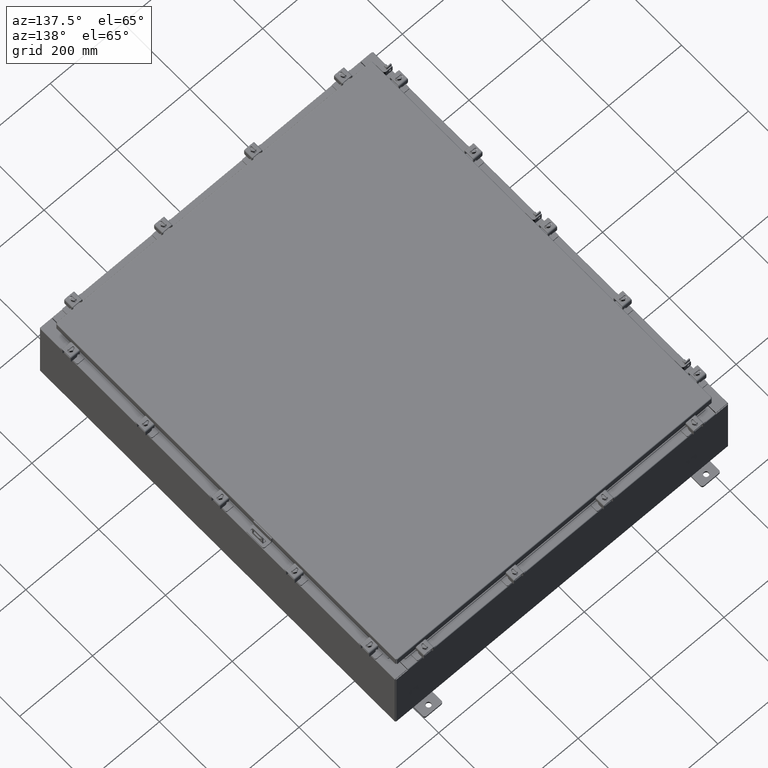
[diagram: clean part render]
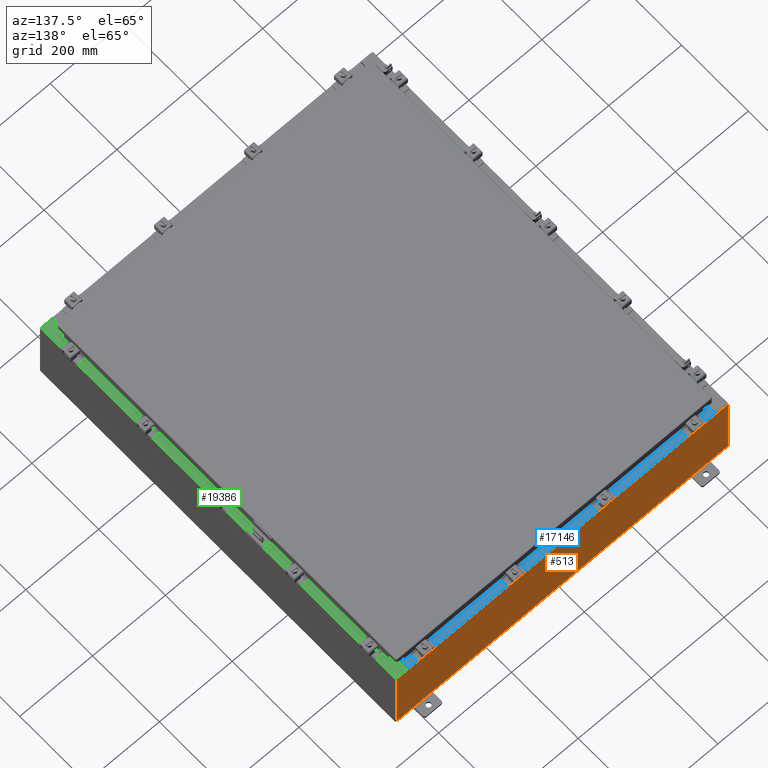
[diagram: same view with three faces highlighted in distinct colors, each labeled with its STEP entity id]
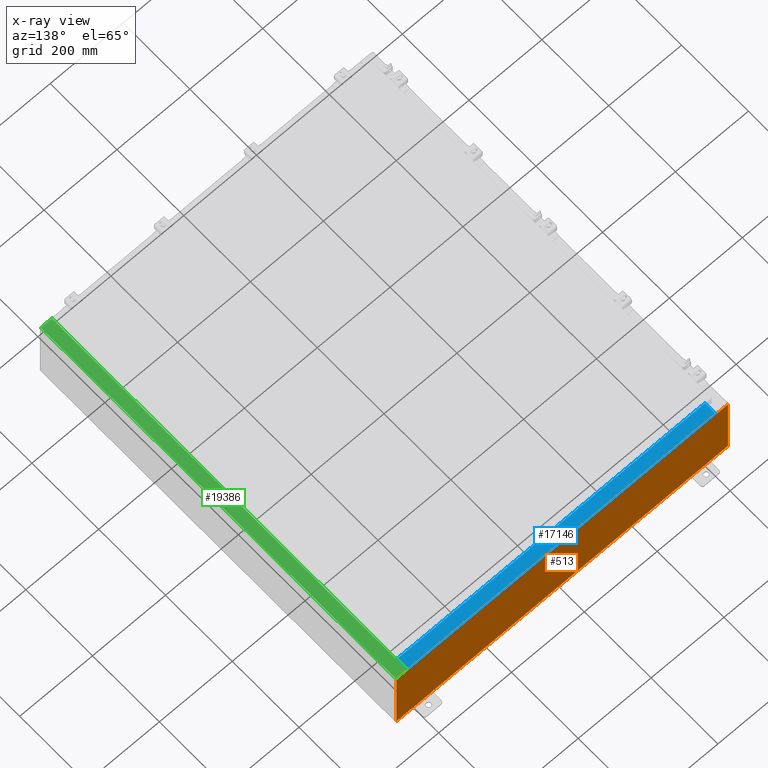
[diagram: x-ray of the same camera — body ghosted, the three highlighted faces saturated]
A machine part, auxiliary view with three faces highlighted in distinct colors.
The next image is the same camera in x-ray (body ghosted, the three faces saturated) — at least one of them is partly hidden behind the body in this view.
Their STEP definitions:

[orange] entity #513 — the highlighted planar face has unit normal (0, -1, 0).
#57 = CARTESIAN_POINT ( 'NONE',  ( 17.92530000000000400, 0.0000000000000000000, -3.925299999999999100 ) ) ;
#249 = DIRECTION ( 'NONE',  ( -0.0000000000000000000, 1.000000000000000000, -0.0000000000000000000 ) ) ;
#468 = CARTESIAN_POINT ( 'NONE',  ( -17.92529999999999600, 0.0000000000000000000, 3.925300000000000500 ) ) ;
#513 = ADVANCED_FACE ( 'NONE', ( #872 ), #7892, .F. ) ;
#721 = ORIENTED_EDGE ( 'NONE', *, *, #7385, .T. ) ;
#872 = FACE_OUTER_BOUND ( 'NONE', #26702, .T. ) ;
#1175 = ORIENTED_EDGE ( 'NONE', *, *, #8041, .T. ) ;
#1194 = CARTESIAN_POINT ( 'NONE',  ( -17.92529999999999600, 0.0000000000000000000, -3.925299999999999100 ) ) ;
#1253 = CARTESIAN_POINT ( 'NONE',  ( 16.63720000000000700, 0.0000000000000000000, 3.874950000000000100 ) ) ;
#1346 = LINE ( 'NONE', #3419, #6255 ) ;
#1820 = LINE ( 'NONE', #1194, #16595 ) ;
#1972 = DIRECTION ( 'NONE',  ( 0.0000000000000000000, 0.0000000000000000000, -1.000000000000000000 ) ) ;
#2774 = CARTESIAN_POINT ( 'NONE',  ( -16.63719999999999600, 3.756290991288361700E-016, 3.912300000000000100 ) ) ;
#2886 = EDGE_CURVE ( 'NONE', #23083, #26598, #16875, .T. ) ;
#2887 = VERTEX_POINT ( 'NONE', #9595 ) ;
#3419 = CARTESIAN_POINT ( 'NONE',  ( -16.63719999999999600, 3.756290991288361700E-016, 3.912300000000000100 ) ) ;
#3991 = VERTEX_POINT ( 'NONE', #9312 ) ;
#4655 = AXIS2_PLACEMENT_3D ( 'NONE', #12800, #249, #14933 ) ;
#4781 = VECTOR ( 'NONE', #9512, 39.37007874015748100 ) ;
#4838 = ORIENTED_EDGE ( 'NONE', *, *, #17167, .F. ) ;
#5137 = LINE ( 'NONE', #23334, #26874 ) ;
#5759 = EDGE_CURVE ( 'NONE', #2887, #24980, #5980, .T. ) ;
#5980 = LINE ( 'NONE', #22953, #17142 ) ;
#6255 = VECTOR ( 'NONE', #9745, 39.37007874015748100 ) ;
#7196 = CARTESIAN_POINT ( 'NONE',  ( -17.92529999999999600, 0.0000000000000000000, 3.925300000000000500 ) ) ;
#7385 = EDGE_CURVE ( 'NONE', #11312, #3991, #1820, .T. ) ;
#7414 = CARTESIAN_POINT ( 'NONE',  ( -17.92529999999999600, 0.0000000000000000000, 3.925300000000000500 ) ) ;
#7530 = DIRECTION ( 'NONE',  ( 0.0000000000000000000, -1.000000000000000000, 0.0000000000000000000 ) ) ;
#7630 = DIRECTION ( 'NONE',  ( 0.0000000000000000000, -0.0000000000000000000, -1.000000000000000000 ) ) ;
#7814 = CARTESIAN_POINT ( 'NONE',  ( 0.0000000000000000000, 0.0000000000000000000, 0.0000000000000000000 ) ) ;
#7892 = PLANE ( 'NONE',  #21831 ) ;
#8041 = EDGE_CURVE ( 'NONE', #14058, #11312, #10949, .T. ) ;
#8696 = DIRECTION ( 'NONE',  ( 0.0000000000000000000, 0.0000000000000000000, -1.000000000000000000 ) ) ;
#9312 = CARTESIAN_POINT ( 'NONE',  ( -17.92529999999999600, 0.0000000000000000000, -3.925299999999999100 ) ) ;
#9512 = DIRECTION ( 'NONE',  ( 1.000000000000000000, 0.0000000000000000000, 0.0000000000000000000 ) ) ;
#9595 = CARTESIAN_POINT ( 'NONE',  ( 16.67455000000001100, 0.0000000000000000000, 3.925300000000000500 ) ) ;
#9745 = DIRECTION ( 'NONE',  ( 1.000000000000000000, 0.0000000000000000000, 0.0000000000000000000 ) ) ;
#9878 = ORIENTED_EDGE ( 'NONE', *, *, #10477, .T. ) ;
#9892 = ORIENTED_EDGE ( 'NONE', *, *, #21265, .F. ) ;
#9970 = ORIENTED_EDGE ( 'NONE', *, *, #24027, .T. ) ;
#10043 = DIRECTION ( 'NONE',  ( 0.0000000000000000000, 0.0000000000000000000, -1.000000000000000000 ) ) ;
#10348 = ORIENTED_EDGE ( 'NONE', *, *, #2886, .T. ) ;
#10477 = EDGE_CURVE ( 'NONE', #26404, #22244, #1346, .T. ) ;
#10949 = LINE ( 'NONE', #22672, #22190 ) ;
#11312 = VERTEX_POINT ( 'NONE', #57 ) ;
#12047 = CARTESIAN_POINT ( 'NONE',  ( -16.67454999999999600, -0.0000000000000000000, 0.0000000000000000000 ) ) ;
#12261 = EDGE_CURVE ( 'NONE', #3991, #23083, #13788, .T. ) ;
#12378 = ORIENTED_EDGE ( 'NONE', *, *, #12261, .T. ) ;
#12800 = CARTESIAN_POINT ( 'NONE',  ( 16.65587500000000500, 0.0000000000000000000, 3.874950000000000100 ) ) ;
#13320 = CIRCLE ( 'NONE', #21772, 0.01867499999999949400 ) ;
#13336 = VECTOR ( 'NONE', #24659, 39.37007874015748100 ) ;
#13767 = CARTESIAN_POINT ( 'NONE',  ( -16.67454999999999600, 0.0000000000000000000, 3.925300000000000500 ) ) ;
#13788 = LINE ( 'NONE', #7196, #25016 ) ;
#14058 = VERTEX_POINT ( 'NONE', #20248 ) ;
#14412 = VECTOR ( 'NONE', #19577, 39.37007874015748100 ) ;
#14550 = DIRECTION ( 'NONE',  ( -0.0000000000000000000, 1.000000000000000000, -0.0000000000000000000 ) ) ;
#14658 = VERTEX_POINT ( 'NONE', #15580 ) ;
#14716 = EDGE_CURVE ( 'NONE', #25577, #26598, #18977, .T. ) ;
#14910 = CIRCLE ( 'NONE', #4655, 0.01867499999999949400 ) ;
#14933 = DIRECTION ( 'NONE',  ( 0.0000000000000000000, 0.0000000000000000000, -1.000000000000000000 ) ) ;
#15580 = CARTESIAN_POINT ( 'NONE',  ( -16.63719999999999600, -0.0000000000000000000, 3.874950000000000100 ) ) ;
#15873 = DIRECTION ( 'NONE',  ( -1.000000000000000000, -0.0000000000000000000, -0.0000000000000000000 ) ) ;
#16079 = ORIENTED_EDGE ( 'NONE', *, *, #14716, .F. ) ;
#16506 = CARTESIAN_POINT ( 'NONE',  ( 16.63720000000000700, 0.0000000000000000000, 3.912300000000000100 ) ) ;
#16595 = VECTOR ( 'NONE', #15873, 39.37007874015748100 ) ;
#16875 = LINE ( 'NONE', #22127, #21820 ) ;
#17142 = VECTOR ( 'NONE', #18796, 39.37007874015748100 ) ;
#17167 = EDGE_CURVE ( 'NONE', #14658, #25577, #13320, .T. ) ;
#17363 = CARTESIAN_POINT ( 'NONE',  ( 16.63720000000000700, 0.0000000000000000000, 0.0000000000000000000 ) ) ;
#17560 = ORIENTED_EDGE ( 'NONE', *, *, #5759, .F. ) ;
#17976 = DIRECTION ( 'NONE',  ( 1.000000000000000000, 0.0000000000000000000, 0.0000000000000000000 ) ) ;
#18435 = ORIENTED_EDGE ( 'NONE', *, *, #23699, .F. ) ;
#18796 = DIRECTION ( 'NONE',  ( -8.681145560800009800E-014, 0.0000000000000000000, -1.000000000000000000 ) ) ;
#18977 = LINE ( 'NONE', #12047, #13336 ) ;
#19577 = DIRECTION ( 'NONE',  ( 0.0000000000000000000, 0.0000000000000000000, 1.000000000000000000 ) ) ;
#19802 = DIRECTION ( 'NONE',  ( -0.0000000000000000000, -0.0000000000000000000, 1.000000000000000000 ) ) ;
#20015 = LINE ( 'NONE', #17363, #14412 ) ;
#20248 = CARTESIAN_POINT ( 'NONE',  ( 17.92530000000000400, 0.0000000000000000000, 3.925300000000000500 ) ) ;
#21265 = EDGE_CURVE ( 'NONE', #22721, #22244, #20015, .T. ) ;
#21413 = ORIENTED_EDGE ( 'NONE', *, *, #25470, .F. ) ;
#21586 = LINE ( 'NONE', #7414, #4781 ) ;
#21772 = AXIS2_PLACEMENT_3D ( 'NONE', #27184, #14550, #1972 ) ;
#21820 = VECTOR ( 'NONE', #17976, 39.37007874015748100 ) ;
#21831 = AXIS2_PLACEMENT_3D ( 'NONE', #7814, #7530, #7630 ) ;
#22127 = CARTESIAN_POINT ( 'NONE',  ( -17.92529999999999600, 0.0000000000000000000, 3.925300000000000500 ) ) ;
#22190 = VECTOR ( 'NONE', #10043, 39.37007874015748100 ) ;
#22244 = VERTEX_POINT ( 'NONE', #16506 ) ;
#22672 = CARTESIAN_POINT ( 'NONE',  ( 17.92530000000000400, 0.0000000000000000000, 3.925300000000000500 ) ) ;
#22721 = VERTEX_POINT ( 'NONE', #1253 ) ;
#22953 = CARTESIAN_POINT ( 'NONE',  ( 16.67454999999967000, -0.0000000000000000000, -1.447541957108349400E-012 ) ) ;
#23083 = VERTEX_POINT ( 'NONE', #468 ) ;
#23334 = CARTESIAN_POINT ( 'NONE',  ( -16.63719999999999600, -0.0000000000000000000, 0.0000000000000000000 ) ) ;
#23619 = CARTESIAN_POINT ( 'NONE',  ( 16.67455000000000700, 0.0000000000000000000, 3.874950000000000100 ) ) ;
#23699 = EDGE_CURVE ( 'NONE', #26404, #14658, #5137, .T. ) ;
#24027 = EDGE_CURVE ( 'NONE', #2887, #14058, #21586, .T. ) ;
#24659 = DIRECTION ( 'NONE',  ( 0.0000000000000000000, 0.0000000000000000000, 1.000000000000000000 ) ) ;
#24980 = VERTEX_POINT ( 'NONE', #23619 ) ;
#25016 = VECTOR ( 'NONE', #19802, 39.37007874015748100 ) ;
#25470 = EDGE_CURVE ( 'NONE', #24980, #22721, #14910, .T. ) ;
#25577 = VERTEX_POINT ( 'NONE', #25604 ) ;
#25604 = CARTESIAN_POINT ( 'NONE',  ( -16.67454999999999600, 0.0000000000000000000, 3.874950000000000100 ) ) ;
#26404 = VERTEX_POINT ( 'NONE', #2774 ) ;
#26598 = VERTEX_POINT ( 'NONE', #13767 ) ;
#26702 = EDGE_LOOP ( 'NONE', ( #16079, #4838, #18435, #9878, #9892, #21413, #17560, #9970, #1175, #721, #12378, #10348 ) ) ;
#26874 = VECTOR ( 'NONE', #8696, 39.37007874015748100 ) ;
#27184 = CARTESIAN_POINT ( 'NONE',  ( -16.65587499999999800, 0.0000000000000000000, 3.874950000000000100 ) ) ;

[blue] entity #17146 — the highlighted planar face has unit normal (0, 0, 1).
#1323 = LINE ( 'NONE', #27139, #23033 ) ;
#1895 = DIRECTION ( 'NONE',  ( 0.0000000000000000000, -1.000000000000000000, 3.566381192773190000E-015 ) ) ;
#2396 = LINE ( 'NONE', #10408, #24120 ) ;
#2679 = VECTOR ( 'NONE', #13188, 39.37007874015748100 ) ;
#3778 = VERTEX_POINT ( 'NONE', #12792 ) ;
#4171 = DIRECTION ( 'NONE',  ( -0.0000000000000000000, 1.000000000000000000, -3.566381192773190000E-015 ) ) ;
#5067 = CARTESIAN_POINT ( 'NONE',  ( 16.63720000000000400, -1.287299999999999900, 4.000000000000004400 ) ) ;
#6319 = CARTESIAN_POINT ( 'NONE',  ( -16.63719999999999600, -0.08769999999999972300, 4.000000000000000900 ) ) ;
#6752 = EDGE_CURVE ( 'NONE', #17540, #14787, #18437, .T. ) ;
#7035 = EDGE_CURVE ( 'NONE', #3778, #9414, #1323, .T. ) ;
#7223 = VECTOR ( 'NONE', #13662, 39.37007874015748100 ) ;
#9069 = FACE_OUTER_BOUND ( 'NONE', #24434, .T. ) ;
#9414 = VERTEX_POINT ( 'NONE', #6319 ) ;
#10115 = CARTESIAN_POINT ( 'NONE',  ( -16.63719999999999600, -1.287299999999999200, 4.000000000000004400 ) ) ;
#10408 = CARTESIAN_POINT ( 'NONE',  ( -16.63719999999999600, -0.07469999999999973900, 4.000000000000000900 ) ) ;
#12776 = ORIENTED_EDGE ( 'NONE', *, *, #7035, .T. ) ;
#12792 = CARTESIAN_POINT ( 'NONE',  ( 16.63720000000000700, -0.08769999999999937600, 4.000000000000000900 ) ) ;
#13188 = DIRECTION ( 'NONE',  ( -0.0000000000000000000, -1.000000000000000000, 3.566381192773190000E-015 ) ) ;
#13662 = DIRECTION ( 'NONE',  ( -1.000000000000000000, 0.0000000000000000000, 0.0000000000000000000 ) ) ;
#13972 = ORIENTED_EDGE ( 'NONE', *, *, #26118, .F. ) ;
#14452 = DIRECTION ( 'NONE',  ( 0.0000000000000000000, 3.566381192773190000E-015, 1.000000000000000000 ) ) ;
#14787 = VERTEX_POINT ( 'NONE', #10115 ) ;
#15797 = CARTESIAN_POINT ( 'NONE',  ( 16.63720000000000700, -1.287299999999999900, 4.000000000000004400 ) ) ;
#17146 = ADVANCED_FACE ( 'NONE', ( #9069 ), #24961, .T. ) ;
#17540 = VERTEX_POINT ( 'NONE', #5067 ) ;
#17674 = ORIENTED_EDGE ( 'NONE', *, *, #26948, .F. ) ;
#18437 = LINE ( 'NONE', #15797, #7223 ) ;
#19027 = CARTESIAN_POINT ( 'NONE',  ( 16.63720000000000400, -1.300299999999999800, 4.000000000000004400 ) ) ;
#20801 = LINE ( 'NONE', #19027, #2679 ) ;
#20877 = DIRECTION ( 'NONE',  ( -1.000000000000000000, 3.284023746380717400E-017, -1.171208052571274300E-031 ) ) ;
#23033 = VECTOR ( 'NONE', #20877, 39.37007874015748100 ) ;
#23188 = AXIS2_PLACEMENT_3D ( 'NONE', #27092, #14452, #1895 ) ;
#23266 = ORIENTED_EDGE ( 'NONE', *, *, #6752, .F. ) ;
#24120 = VECTOR ( 'NONE', #4171, 39.37007874015748100 ) ;
#24434 = EDGE_LOOP ( 'NONE', ( #13972, #23266, #17674, #12776 ) ) ;
#24961 = PLANE ( 'NONE',  #23188 ) ;
#26118 = EDGE_CURVE ( 'NONE', #14787, #9414, #2396, .T. ) ;
#26948 = EDGE_CURVE ( 'NONE', #3778, #17540, #20801, .T. ) ;
#27092 = CARTESIAN_POINT ( 'NONE',  ( 0.0000000000000000000, 1.425992975200418500E-014, 4.000000000000000900 ) ) ;
#27139 = CARTESIAN_POINT ( 'NONE',  ( -2.880088825576348200E-018, -0.08769999999999972300, 4.000000000000000900 ) ) ;

[green] entity #19386 — the highlighted planar face has unit normal (-0, -0, -1).
#4 = EDGE_CURVE ( 'NONE', #19740, #6968, #21945, .T. ) ;
#421 = DIRECTION ( 'NONE',  ( 1.000000000000000000, 0.0000000000000000000, -6.241167087353087800E-015 ) ) ;
#875 = EDGE_CURVE ( 'NONE', #2236, #10818, #4773, .T. ) ;
#1174 = CARTESIAN_POINT ( 'NONE',  ( 4.972393517341169600E-014, -20.92529999999999600, 7.925300000000113700 ) ) ;
#1366 = ORIENTED_EDGE ( 'NONE', *, *, #4, .F. ) ;
#1755 = CARTESIAN_POINT ( 'NONE',  ( 16.71270000000003400, 19.59374999999998200, 7.925300000000009800 ) ) ;
#1760 = CARTESIAN_POINT ( 'NONE',  ( 16.75005000000003400, 19.61242499999998000, 7.925300000000009800 ) ) ;
#1776 = CARTESIAN_POINT ( 'NONE',  ( 16.69970000000003200, 20.92529999999997900, 7.925300000000008900 ) ) ;
#2125 = CIRCLE ( 'NONE', #22130, 0.01867499999999949400 ) ;
#2236 = VERTEX_POINT ( 'NONE', #22403 ) ;
#3061 = ORIENTED_EDGE ( 'NONE', *, *, #25310, .F. ) ;
#3206 = VECTOR ( 'NONE', #21599, 39.37007874015748100 ) ;
#3245 = VERTEX_POINT ( 'NONE', #17104 ) ;
#3725 = ORIENTED_EDGE ( 'NONE', *, *, #25478, .F. ) ;
#3739 = VECTOR ( 'NONE', #21221, 39.37007874015748100 ) ;
#3855 = DIRECTION ( 'NONE',  ( 1.000000000000000000, 0.0000000000000000000, 0.0000000000000000000 ) ) ;
#3905 = LINE ( 'NONE', #6976, #25598 ) ;
#3930 = CARTESIAN_POINT ( 'NONE',  ( 16.75005000000003400, -19.61242499999999800, 7.925300000000009800 ) ) ;
#4560 = ORIENTED_EDGE ( 'NONE', *, *, #14316, .F. ) ;
#4754 = CARTESIAN_POINT ( 'NONE',  ( 16.69970000000003200, 2.069333763834919300E-016, 7.925300000000008900 ) ) ;
#4773 = LINE ( 'NONE', #1174, #5451 ) ;
#5451 = VECTOR ( 'NONE', #421, 39.37007874015748100 ) ;
#5896 = CARTESIAN_POINT ( 'NONE',  ( 16.71270000000003400, 19.59374999999998200, 7.925300000000009800 ) ) ;
#6056 = DIRECTION ( 'NONE',  ( 1.000000000000000000, 0.0000000000000000000, 0.0000000000000000000 ) ) ;
#6613 = VERTEX_POINT ( 'NONE', #6974 ) ;
#6814 = LINE ( 'NONE', #7225, #16691 ) ;
#6968 = VERTEX_POINT ( 'NONE', #1755 ) ;
#6974 = CARTESIAN_POINT ( 'NONE',  ( 16.75005000000003400, -19.59375000000000000, 7.925300000000007100 ) ) ;
#6976 = CARTESIAN_POINT ( 'NONE',  ( 16.69970000000003200, 2.069333763834919300E-016, 7.925300000000008900 ) ) ;
#6994 = FACE_OUTER_BOUND ( 'NONE', #23628, .T. ) ;
#7072 = CARTESIAN_POINT ( 'NONE',  ( 17.91230000000002700, 20.92529999999997500, 7.925300000000000000 ) ) ;
#7225 = CARTESIAN_POINT ( 'NONE',  ( 17.91230000000002700, -20.92529999999999600, 7.925300000000000900 ) ) ;
#7321 = DIRECTION ( 'NONE',  ( -0.0000000000000000000, -1.000000000000000000, 2.611047864225856100E-017 ) ) ;
#7487 = CARTESIAN_POINT ( 'NONE',  ( 16.69970000000003200, 19.63109999999997500, 7.925300000000008900 ) ) ;
#8170 = DIRECTION ( 'NONE',  ( -6.241167087353086200E-015, -2.611047864225855500E-017, -1.000000000000000000 ) ) ;
#8785 = LINE ( 'NONE', #11080, #3206 ) ;
#9090 = DIRECTION ( 'NONE',  ( 0.0000000000000000000, -1.000000000000000000, 2.611047864225856100E-017 ) ) ;
#9348 = CARTESIAN_POINT ( 'NONE',  ( 17.91230000000002700, -20.92529999999999600, 7.925300000000000900 ) ) ;
#9838 = VERTEX_POINT ( 'NONE', #7487 ) ;
#10264 = ORIENTED_EDGE ( 'NONE', *, *, #17769, .F. ) ;
#10451 = CARTESIAN_POINT ( 'NONE',  ( 16.75005000000003400, -19.59375000000000000, 7.925300000000009800 ) ) ;
#10640 = LINE ( 'NONE', #25421, #3739 ) ;
#10818 = VERTEX_POINT ( 'NONE', #9348 ) ;
#11080 = CARTESIAN_POINT ( 'NONE',  ( 4.972393517341169600E-014, 20.92529999999998600, 7.925300000000111900 ) ) ;
#11609 = EDGE_CURVE ( 'NONE', #19620, #2236, #27031, .T. ) ;
#12017 = VECTOR ( 'NONE', #20613, 39.37007874015748100 ) ;
#12134 = CARTESIAN_POINT ( 'NONE',  ( 16.75005000000003400, 19.59374999999998200, 7.925300000000007100 ) ) ;
#12202 = CARTESIAN_POINT ( 'NONE',  ( 16.71270000000003400, -19.59375000000000000, 7.925300000000009800 ) ) ;
#12303 = CARTESIAN_POINT ( 'NONE',  ( 4.972393517341169600E-014, 2.069333763834946700E-016, 7.925300000000111900 ) ) ;
#12907 = CARTESIAN_POINT ( 'NONE',  ( 16.69970000000003200, -19.63110000000000000, 7.925300000000008900 ) ) ;
#13170 = DIRECTION ( 'NONE',  ( -0.0000000000000000000, 1.000000000000000000, -0.0000000000000000000 ) ) ;
#13174 = DIRECTION ( 'NONE',  ( 0.0000000000000000000, -1.000000000000000000, 2.611047864225856100E-017 ) ) ;
#13227 = VERTEX_POINT ( 'NONE', #22115 ) ;
#14316 = EDGE_CURVE ( 'NONE', #6613, #19740, #21959, .T. ) ;
#14820 = VERTEX_POINT ( 'NONE', #1776 ) ;
#15391 = CARTESIAN_POINT ( 'NONE',  ( 16.71270000000003400, -19.59375000000000000, 7.925300000000009800 ) ) ;
#15523 = ORIENTED_EDGE ( 'NONE', *, *, #11609, .T. ) ;
#15818 = VECTOR ( 'NONE', #13174, 39.37007874015748100 ) ;
#15858 = ORIENTED_EDGE ( 'NONE', *, *, #17038, .F. ) ;
#16342 = VECTOR ( 'NONE', #13170, 39.37007874015748100 ) ;
#16443 = DIRECTION ( 'NONE',  ( 6.241167087353086200E-015, 2.611047864225855500E-017, 1.000000000000000000 ) ) ;
#16672 = CIRCLE ( 'NONE', #24882, 0.01867499999999949400 ) ;
#16691 = VECTOR ( 'NONE', #7321, 39.37007874015748100 ) ;
#17038 = EDGE_CURVE ( 'NONE', #19620, #13227, #22280, .T. ) ;
#17104 = CARTESIAN_POINT ( 'NONE',  ( 16.75005000000003400, 19.63109999999998200, 7.925300000000007100 ) ) ;
#17759 = VERTEX_POINT ( 'NONE', #12134 ) ;
#17769 = EDGE_CURVE ( 'NONE', #6968, #17759, #23218, .T. ) ;
#18651 = DIRECTION ( 'NONE',  ( 6.241167087353086200E-015, 2.611047864225855500E-017, 1.000000000000000000 ) ) ;
#18669 = PLANE ( 'NONE',  #20407 ) ;
#19059 = VERTEX_POINT ( 'NONE', #7072 ) ;
#19386 = ADVANCED_FACE ( 'NONE', ( #6994 ), #18669, .F. ) ;
#19620 = VERTEX_POINT ( 'NONE', #12907 ) ;
#19740 = VERTEX_POINT ( 'NONE', #15391 ) ;
#20407 = AXIS2_PLACEMENT_3D ( 'NONE', #12303, #8170, #22916 ) ;
#20525 = ORIENTED_EDGE ( 'NONE', *, *, #875, .T. ) ;
#20613 = DIRECTION ( 'NONE',  ( 1.000000000000000000, 0.0000000000000000000, 0.0000000000000000000 ) ) ;
#20971 = DIRECTION ( 'NONE',  ( -1.000000000000000000, 0.0000000000000000000, 0.0000000000000000000 ) ) ;
#20997 = ORIENTED_EDGE ( 'NONE', *, *, #23491, .F. ) ;
#21221 = DIRECTION ( 'NONE',  ( -1.000000000000000000, 4.340572780399910900E-014, -2.170286390199955400E-014 ) ) ;
#21272 = EDGE_CURVE ( 'NONE', #14820, #9838, #3905, .T. ) ;
#21301 = VECTOR ( 'NONE', #20971, 39.37007874015748100 ) ;
#21538 = ORIENTED_EDGE ( 'NONE', *, *, #21272, .T. ) ;
#21599 = DIRECTION ( 'NONE',  ( -1.000000000000000000, 0.0000000000000000000, 6.241167087353087800E-015 ) ) ;
#21795 = EDGE_CURVE ( 'NONE', #19059, #14820, #8785, .T. ) ;
#21942 = EDGE_CURVE ( 'NONE', #19059, #10818, #6814, .T. ) ;
#21945 = LINE ( 'NONE', #12202, #16342 ) ;
#21959 = LINE ( 'NONE', #10451, #21301 ) ;
#22115 = CARTESIAN_POINT ( 'NONE',  ( 16.75005000000003400, -19.63109999999999600, 7.925300000000008900 ) ) ;
#22130 = AXIS2_PLACEMENT_3D ( 'NONE', #3930, #18651, #6056 ) ;
#22280 = LINE ( 'NONE', #26713, #26545 ) ;
#22403 = CARTESIAN_POINT ( 'NONE',  ( 16.69970000000003200, -20.92529999999999600, 7.925300000000009800 ) ) ;
#22916 = DIRECTION ( 'NONE',  ( -1.000000000000000000, 0.0000000000000000000, 6.241167087353086200E-015 ) ) ;
#23218 = LINE ( 'NONE', #5896, #12017 ) ;
#23491 = EDGE_CURVE ( 'NONE', #17759, #3245, #16672, .T. ) ;
#23628 = EDGE_LOOP ( 'NONE', ( #15858, #15523, #20525, #25881, #27107, #21538, #3725, #20997, #10264, #1366, #4560, #3061 ) ) ;
#24599 = DIRECTION ( 'NONE',  ( 1.000000000000000000, 4.340572780399910900E-014, 2.170286390199955400E-014 ) ) ;
#24882 = AXIS2_PLACEMENT_3D ( 'NONE', #1760, #16443, #3855 ) ;
#25310 = EDGE_CURVE ( 'NONE', #13227, #6613, #2125, .T. ) ;
#25421 = CARTESIAN_POINT ( 'NONE',  ( 16.75005000000003400, 19.63109999999998200, 7.925300000000009800 ) ) ;
#25478 = EDGE_CURVE ( 'NONE', #3245, #9838, #10640, .T. ) ;
#25598 = VECTOR ( 'NONE', #9090, 39.37007874015748100 ) ;
#25881 = ORIENTED_EDGE ( 'NONE', *, *, #21942, .F. ) ;
#26545 = VECTOR ( 'NONE', #24599, 39.37007874015748100 ) ;
#26713 = CARTESIAN_POINT ( 'NONE',  ( 16.69970000000003200, -19.63110000000000000, 7.925300000000008900 ) ) ;
#27031 = LINE ( 'NONE', #4754, #15818 ) ;
#27107 = ORIENTED_EDGE ( 'NONE', *, *, #21795, .T. ) ;